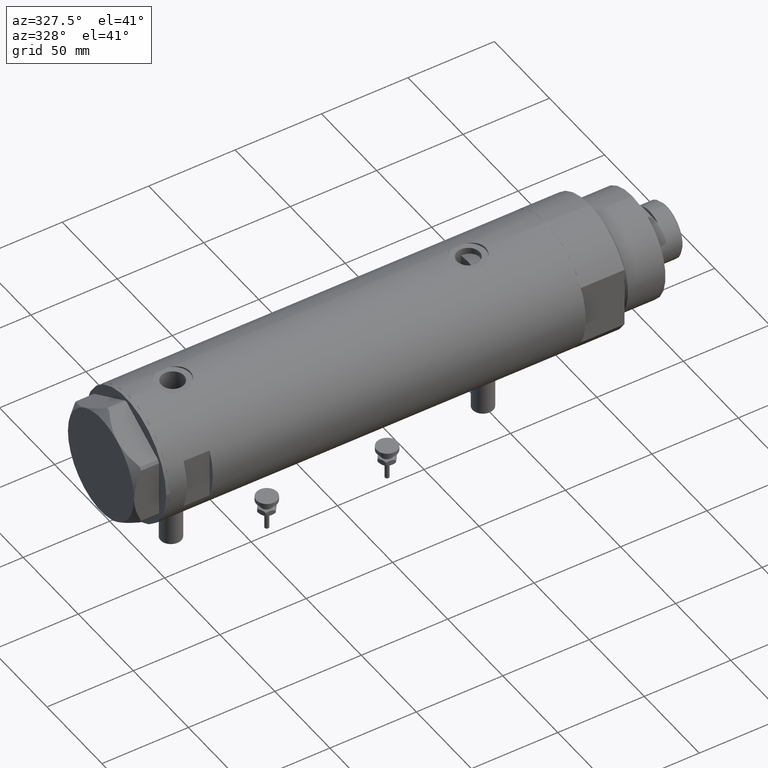
[diagram: clean part render]
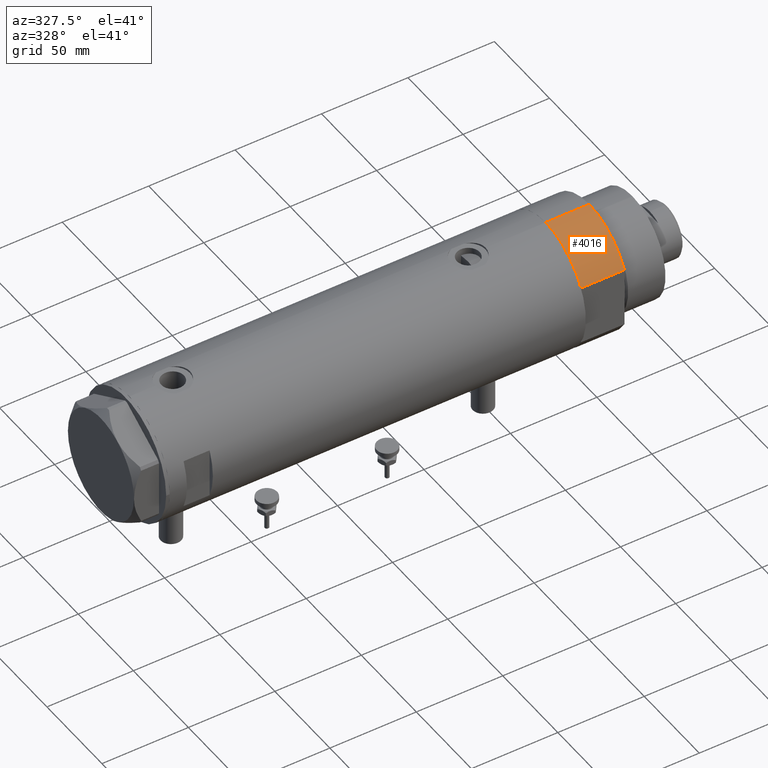
[diagram: same view with one face highlighted and labeled with its STEP entity id]
A machine part, auxiliary view. The second image highlights one B-rep face of the part: STEP entity #4016.
In plain terms, the highlighted cylindrical surface (partial cylindrical patch) has radius 36.5 mm, axis along (-1, -0, 0).
Its self-contained STEP definition (entity closure, byte-faithful):
#68 = VERTEX_POINT ( 'NONE', #2957 ) ;
#131 = CARTESIAN_POINT ( 'NONE',  ( -36.50000000000000000, 0.000000000000000000, 25.19999999999999929 ) ) ;
#345 = FACE_OUTER_BOUND ( 'NONE', #1058, .T. ) ;
#588 = CIRCLE ( 'NONE', #5488, 36.50000000000000000 ) ;
#600 = VECTOR ( 'NONE', #1492, 1000.000000000000000 ) ;
#810 = CARTESIAN_POINT ( 'NONE',  ( 0.000000000000000000, 0.000000000000000000, 25.19999999999999929 ) ) ;
#830 = CYLINDRICAL_SURFACE ( 'NONE', #5888, 36.50000000000000000 ) ;
#843 = AXIS2_PLACEMENT_3D ( 'NONE', #810, #864, #1229 ) ;
#864 = DIRECTION ( 'NONE',  ( 0.000000000000000000, 0.000000000000000000, 1.000000000000000000 ) ) ;
#942 = VERTEX_POINT ( 'NONE', #1798 ) ;
#1003 = CARTESIAN_POINT ( 'NONE',  ( -17.55704986607943141, -32.00000000000000000, 0.000000000000000000 ) ) ;
#1058 = EDGE_LOOP ( 'NONE', ( #4435, #3410, #1334, #3260 ) ) ;
#1229 = DIRECTION ( 'NONE',  ( 1.000000000000000000, 0.000000000000000000, 0.000000000000000000 ) ) ;
#1334 = ORIENTED_EDGE ( 'NONE', *, *, #1905, .T. ) ;
#1363 = CARTESIAN_POINT ( 'NONE',  ( 0.000000000000000000, 0.000000000000000000, 0.000000000000000000 ) ) ;
#1492 = DIRECTION ( 'NONE',  ( -0.000000000000000000, -0.000000000000000000, 1.000000000000000000 ) ) ;
#1798 = CARTESIAN_POINT ( 'NONE',  ( -36.50000000000000000, 0.000000000000000000, 0.000000000000000000 ) ) ;
#1821 = LINE ( 'NONE', #1003, #600 ) ;
#1848 = VECTOR ( 'NONE', #1948, 1000.000000000000000 ) ;
#1905 = EDGE_CURVE ( 'NONE', #942, #4772, #588, .T. ) ;
#1948 = DIRECTION ( 'NONE',  ( -0.000000000000000000, -0.000000000000000000, -1.000000000000000000 ) ) ;
#2177 = CARTESIAN_POINT ( 'NONE',  ( 0.000000000000000000, 0.000000000000000000, 25.19999999999999929 ) ) ;
#2180 = CIRCLE ( 'NONE', #843, 36.50000000000000000 ) ;
#2733 = DIRECTION ( 'NONE',  ( 0.000000000000000000, 0.000000000000000000, 1.000000000000000000 ) ) ;
#2957 = CARTESIAN_POINT ( 'NONE',  ( -17.55704986607943496, -32.00000000000000000, 25.19999999999999929 ) ) ;
#3220 = EDGE_CURVE ( 'NONE', #4772, #68, #1821, .T. ) ;
#3260 = ORIENTED_EDGE ( 'NONE', *, *, #3220, .T. ) ;
#3407 = CARTESIAN_POINT ( 'NONE',  ( -17.55704986607943496, -32.00000000000000000, 0.000000000000000000 ) ) ;
#3410 = ORIENTED_EDGE ( 'NONE', *, *, #4644, .T. ) ;
#3750 = CARTESIAN_POINT ( 'NONE',  ( -36.50000000000000000, 0.000000000000000000, 25.19999999999999929 ) ) ;
#3801 = LINE ( 'NONE', #131, #1848 ) ;
#4016 = ADVANCED_FACE ( 'NONE', ( #345 ), #830, .T. ) ;
#4031 = DIRECTION ( 'NONE',  ( -0.000000000000000000, -0.000000000000000000, -1.000000000000000000 ) ) ;
#4063 = DIRECTION ( 'NONE',  ( -1.000000000000000000, 0.000000000000000000, 0.000000000000000000 ) ) ;
#4140 = VERTEX_POINT ( 'NONE', #3750 ) ;
#4435 = ORIENTED_EDGE ( 'NONE', *, *, #5328, .F. ) ;
#4644 = EDGE_CURVE ( 'NONE', #4140, #942, #3801, .T. ) ;
#4772 = VERTEX_POINT ( 'NONE', #3407 ) ;
#5053 = DIRECTION ( 'NONE',  ( 1.000000000000000000, 0.000000000000000000, 0.000000000000000000 ) ) ;
#5328 = EDGE_CURVE ( 'NONE', #4140, #68, #2180, .T. ) ;
#5488 = AXIS2_PLACEMENT_3D ( 'NONE', #1363, #2733, #5053 ) ;
#5888 = AXIS2_PLACEMENT_3D ( 'NONE', #2177, #4031, #4063 ) ;